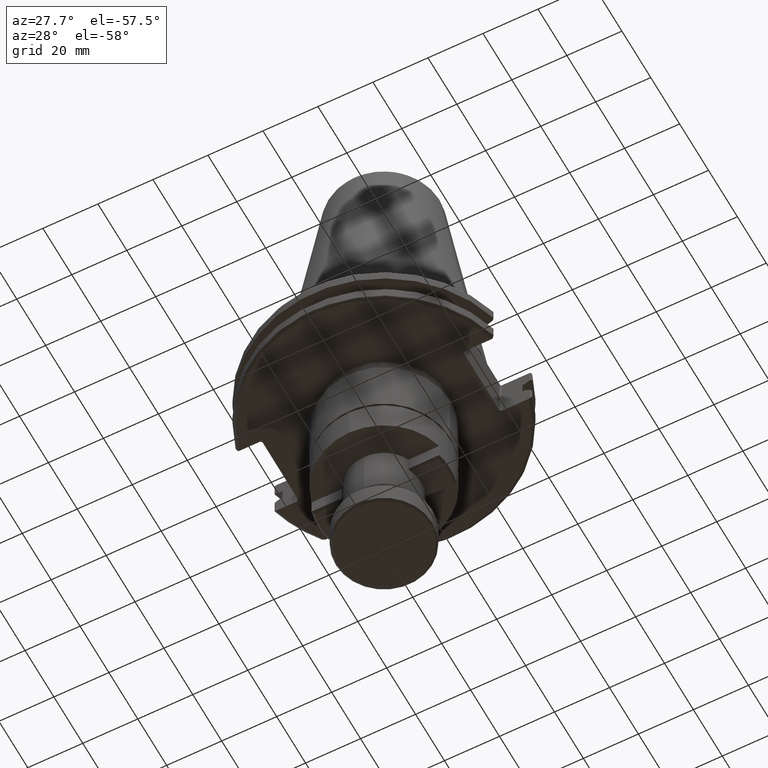
[diagram: clean part render]
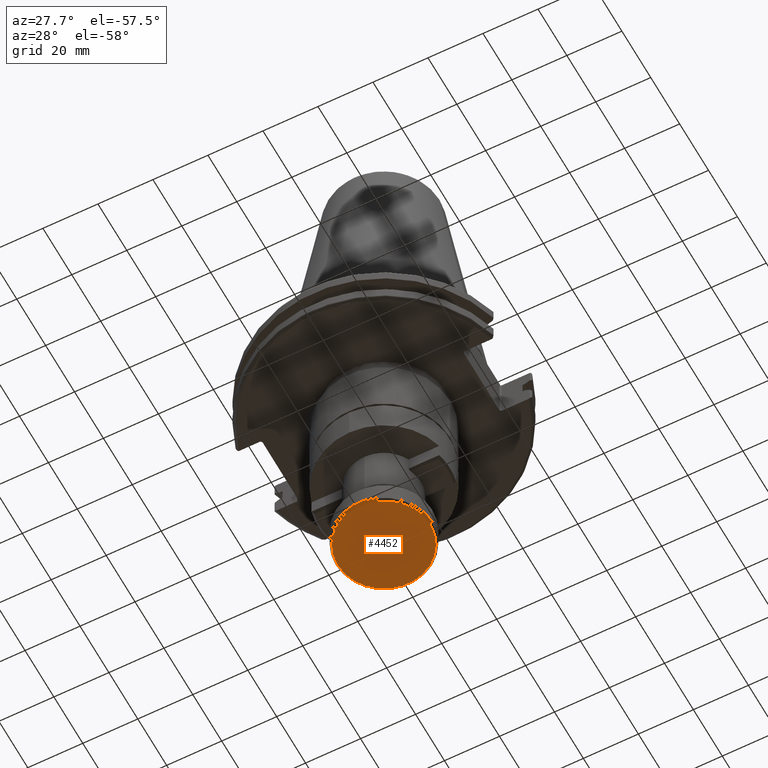
[diagram: same view with one face highlighted and labeled with its STEP entity id]
A machine part, auxiliary view. The second image highlights one B-rep face of the part: STEP entity #4452.
In plain terms, the highlighted planar face has unit normal (0, 0, -1).
Its self-contained STEP definition (entity closure, byte-faithful):
#244 = CARTESIAN_POINT ( 'NONE',  ( 0.0000000000000000000, 0.0000000000000000000, -90.99999999999997200 ) ) ;
#324 = DIRECTION ( 'NONE',  ( -0.0000000000000000000, 0.0000000000000000000, -1.000000000000000000 ) ) ;
#757 = CIRCLE ( 'NONE', #3290, 16.80000000000003600 ) ;
#993 = ORIENTED_EDGE ( 'NONE', *, *, #1874, .T. ) ;
#1188 = AXIS2_PLACEMENT_3D ( 'NONE', #2259, #2251, #2238 ) ;
#1220 = EDGE_CURVE ( 'NONE', #1923, #3415, #1424, .T. ) ;
#1424 = CIRCLE ( 'NONE', #3516, 16.80000000000003600 ) ;
#1874 = EDGE_CURVE ( 'NONE', #3415, #1923, #757, .T. ) ;
#1923 = VERTEX_POINT ( 'NONE', #5223 ) ;
#2238 = DIRECTION ( 'NONE',  ( -1.000000000000000000, 0.0000000000000000000, 0.0000000000000000000 ) ) ;
#2251 = DIRECTION ( 'NONE',  ( 0.0000000000000000000, 0.0000000000000000000, -1.000000000000000000 ) ) ;
#2259 = CARTESIAN_POINT ( 'NONE',  ( 17.00160000000000000, -17.00160000000000000, -91.00000000000000000 ) ) ;
#2526 = FACE_OUTER_BOUND ( 'NONE', #4512, .T. ) ;
#2984 = CARTESIAN_POINT ( 'NONE',  ( 0.0000000000000000000, 0.0000000000000000000, -90.99999999999997200 ) ) ;
#3098 = DIRECTION ( 'NONE',  ( -0.0000000000000000000, 0.0000000000000000000, -1.000000000000000000 ) ) ;
#3158 = DIRECTION ( 'NONE',  ( 1.000000000000000000, 0.0000000000000000000, 0.0000000000000000000 ) ) ;
#3290 = AXIS2_PLACEMENT_3D ( 'NONE', #244, #324, #5069 ) ;
#3415 = VERTEX_POINT ( 'NONE', #3484 ) ;
#3484 = CARTESIAN_POINT ( 'NONE',  ( -16.80000000000003600, 2.100269260537712700E-015, -90.99999999999997200 ) ) ;
#3516 = AXIS2_PLACEMENT_3D ( 'NONE', #2984, #3098, #3158 ) ;
#4452 = ADVANCED_FACE ( 'NONE', ( #2526 ), #4802, .T. ) ;
#4512 = EDGE_LOOP ( 'NONE', ( #4573, #993 ) ) ;
#4573 = ORIENTED_EDGE ( 'NONE', *, *, #1220, .T. ) ;
#4802 = PLANE ( 'NONE',  #1188 ) ;
#5069 = DIRECTION ( 'NONE',  ( 1.000000000000000000, 0.0000000000000000000, 0.0000000000000000000 ) ) ;
#5223 = CARTESIAN_POINT ( 'NONE',  ( 16.80000000000003600, 0.0000000000000000000, -90.99999999999997200 ) ) ;